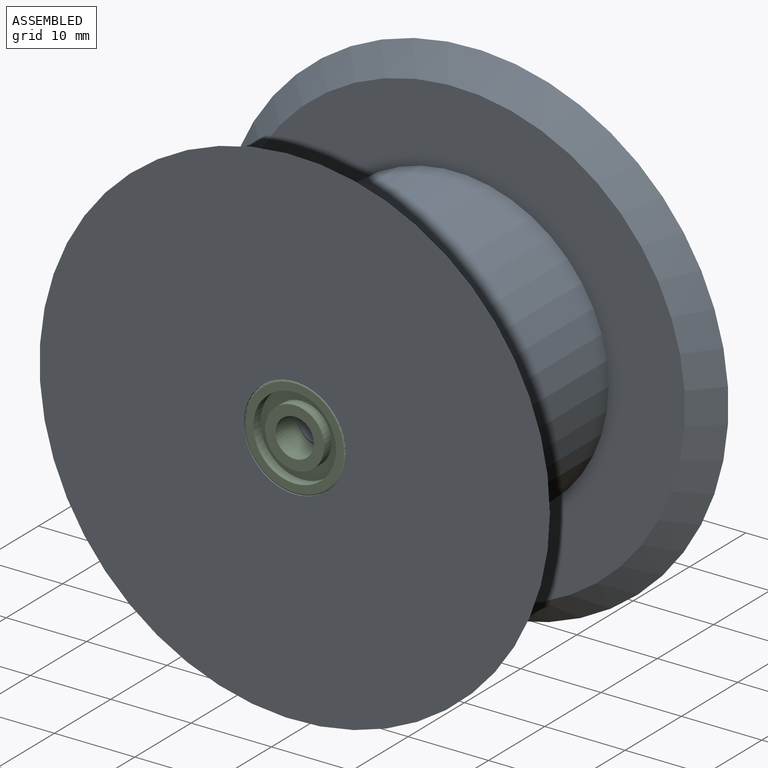
[diagram: assembled view]
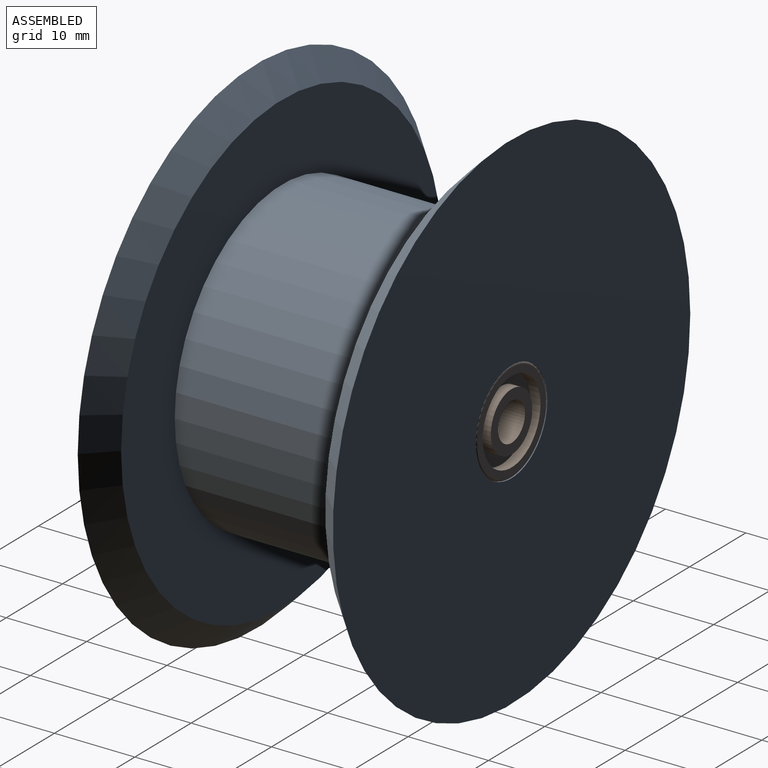
[diagram: assembled view, second angle]
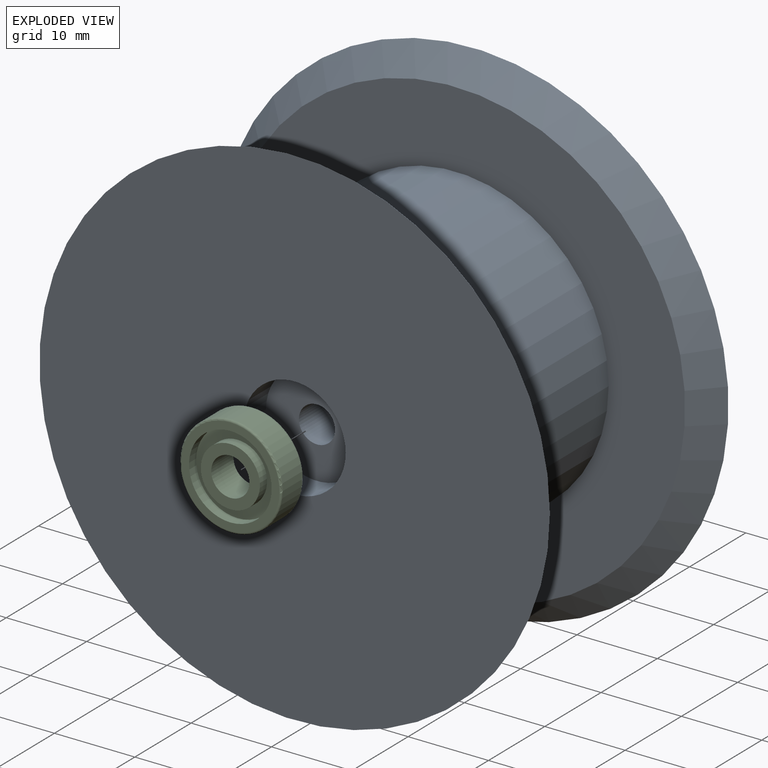
[diagram: exploded view]
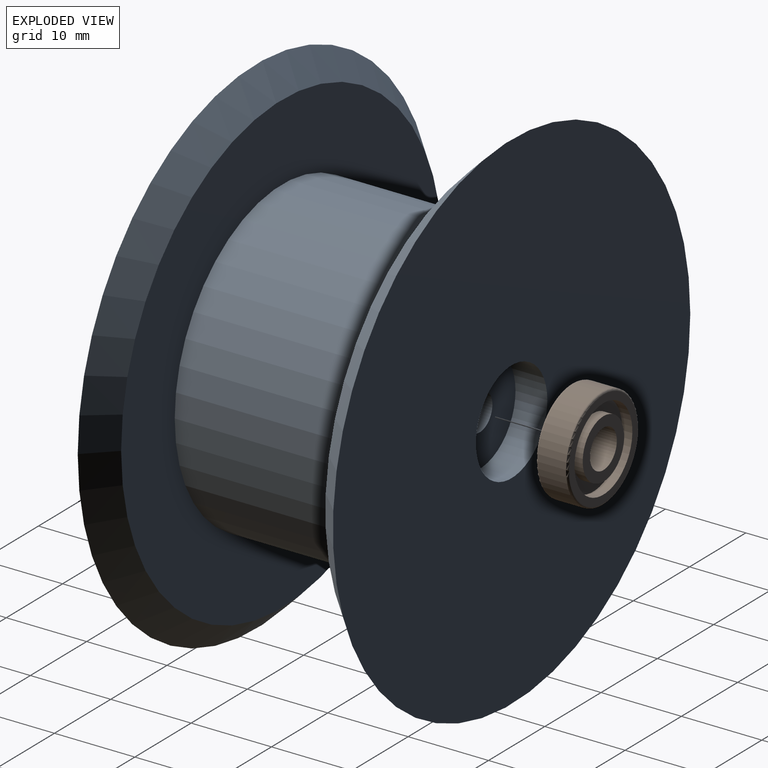
[diagram: exploded view, second angle]
ASSEMBLY  parts=3 mates=2
PART A: 12 faces, bbox 63.5x63.5x31.8 mm
  f0: cylinder r=19.05mm len=38.1mm, axis (0,0,-1), area 3040.2mm2, adj f2,f4
  f1: plane 63.5x63.5mm, normal (0,0,1), area 3040.2mm2, adj f7,f10
  f2: plane 57.15x57.15mm, normal (0,0,-1), area 1425.1mm2, adj f0,f10
  f3: plane 63.5x63.5mm, normal (0,0,-1), area 3040.2mm2, adj f5,f11
  f4: plane 57.15x57.15mm, normal (0,0,1), area 1425.1mm2, adj f0,f11
  f5: cylinder r=6.35mm len=12.7mm, axis (0,0,-1), area 158.1mm2, adj f3,f6
  f6: plane 12.7x12.7mm, normal (0,0,-1), area 110.8mm2, adj f5,f9
  f7: cylinder r=6.35mm len=12.7mm, axis (0,0,1), area 158.1mm2, adj f1,f8
  f8: plane 12.7x12.7mm, normal (0,0,1), area 110.8mm2, adj f7,f9
  f9: cylinder r=2.25mm len=23.83mm, axis (0,0,-1), area 336.5mm2, adj f6,f8
  f10: cone r=31.75mm half-angle=45deg, axis (0,0,1), area 851mm2, adj f1,f2
  f11: cone r=31.75mm half-angle=45deg, axis (0,0,-1), area 851mm2, adj f3,f4
PART B: 14 faces, bbox 13.7x4x13.7 mm
  f0: torus R=6.1mm, axis (0,1,0), area 15.7mm2, adj f4,f11
  f1: torus R=6.1mm, axis (0,-1,0), area 15.7mm2, adj f4,f12
  f2: cylinder r=3.68mm len=7.37mm, axis (0,-1,0), area 29.4mm2, adj f8,f13
  f3: cylinder r=5.14mm len=10.29mm, axis (0,-1,0), area 41mm2, adj f12,f13
  f4: cylinder r=6.35mm len=12.7mm, axis (0,-1,0), area 137.8mm2, adj f0,f1
  f5: cylinder r=5.14mm len=10.29mm, axis (0,-1,0), area 41mm2, adj f10,f11
  f6: cylinder r=3.68mm len=7.37mm, axis (0,-1,0), area 29.4mm2, adj f9,f10
  f7: cylinder r=2.38mm len=4.76mm, axis (0,-1,0), area 59.3mm2, adj f8,f9
  f8: plane 7.37x7.37mm, normal (0,-1,0), area 24.8mm2, adj f2,f7
  f9: plane 7.37x7.37mm, normal (0,1,0), area 24.8mm2, adj f6,f7
  f10: plane 10.29x10.29mm, normal (0,1,0), area 40.5mm2, adj f5,f6
  f11: plane 12.19x12.19mm, normal (0,1,0), area 33.6mm2, adj f0,f5
  f12: plane 12.19x12.19mm, normal (0,-1,0), area 33.6mm2, adj f1,f3
  f13: plane 10.29x10.29mm, normal (0,-1,0), area 40.5mm2, adj f2,f3
PART C: same geometry as B
PLACE A rot(axis=(1,0,0),90deg) t=(0,12.7,0)mm
PLACE B rot(axis=(1,0,0),180deg) t=(0,15.88,0)mm
PLACE C rot(axis=(0,0,1),180deg) t=(0,-11.91,0)mm
MATE revolute A.f5 <-> B.f0  axis (0,1,0) through (0,11.91,0)mm
MATE revolute C.f0 <-> A.f7  axis (0,1,0) through (0,-11.91,0)mm
